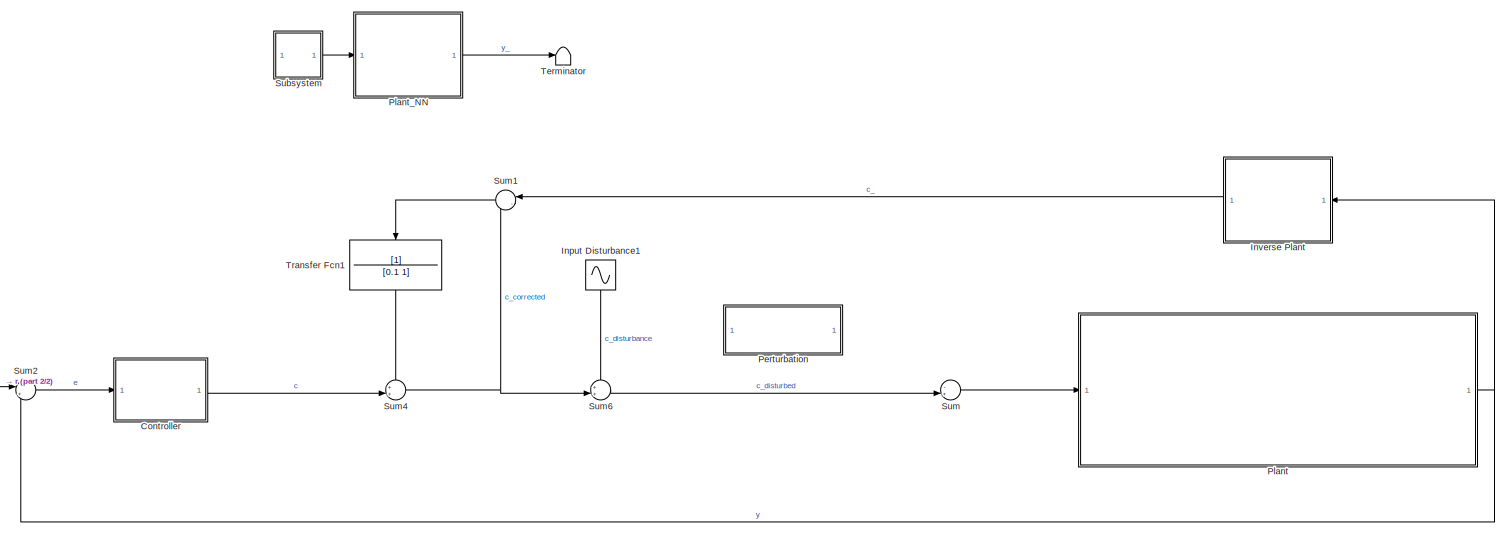
[diagram: root canvas - part 1/2, most of the canvas]
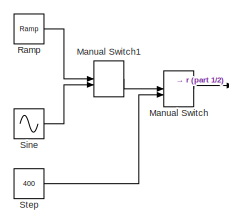
[diagram: root canvas - part 2/2, bottom left region]
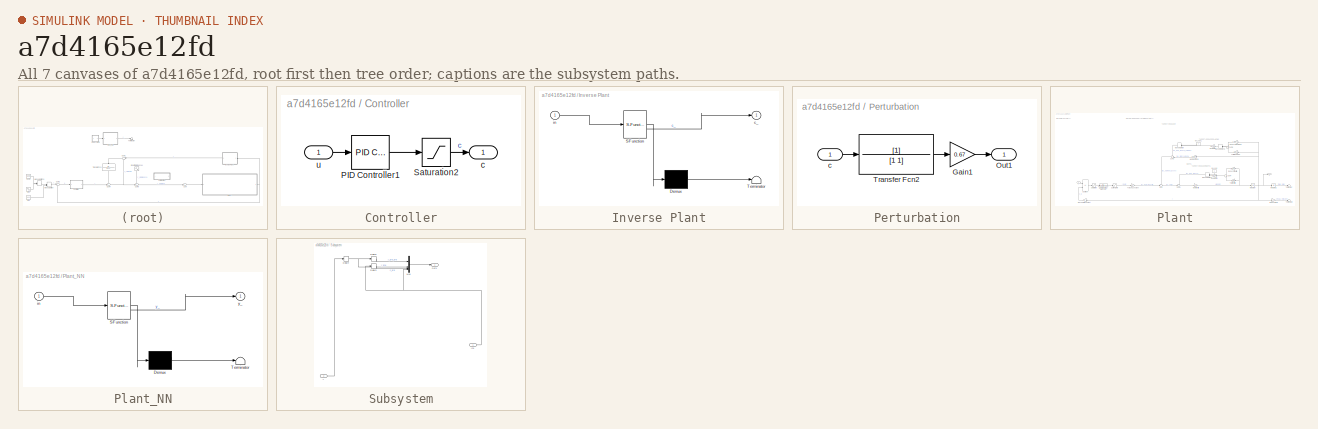
[diagram: thumbnail index - all 7 canvases of the model, root first then tree order]
MODEL slx_a7d4165e12fd
KIND model
CONFIG AbsTol = auto
CONFIG EnableMultiTasking = off
CONFIG FixedStep = auto
CONFIG MaxStep = auto
CONFIG MinStep = auto
CONFIG RelTol = 1e-3
CONFIG SampleTimeConstraint = Unconstrained
CONFIG SolverName = VariableStepAuto
CONFIG StartTime = 0.0
CONFIG StopTime = 10
BLOCK [SubSystem] Controller
  NameLocation = top
BLOCK [Reference] Controller/PID Controller1  REF=slpidlib/PID Controller
  SourceBlock = slpidlib/PID Controller
  SourceType = PID 1dof
BLOCK [Saturate] Controller/Saturation2
  LowerLimit = -28
  UpperLimit = 28
BLOCK [Outport] Controller/c
BLOCK [Inport] Controller/u
BLOCK [Sin] Input Disturbance1
  NameLocation = top
  SampleTime = 0
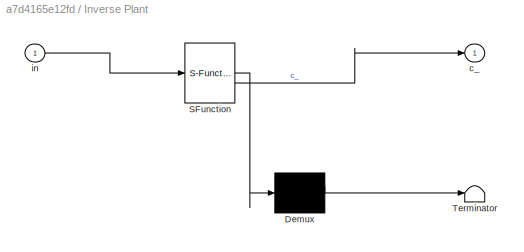
BLOCK [SubSystem] Inverse Plant
  ErrorFcn = Stateflow.Translate.translate
  LibrarySourceBlock = simulink/User-Defined\nFunctions/MATLAB Function
  PermitHierarchicalResolution = ExplicitOnly
  SFBlockType = MATLAB Function
  TreatAsAtomicUnit = on
BLOCK [Demux] Inverse Plant/ Demux 
  Outputs = 1
BLOCK [S-Function] Inverse Plant/ SFunction 
  EnableBusSupport = on
  FunctionName = sf_sfun
  PortCounts = [1 2]
  SFcnIsStateOwnerBlock = off
  SFunctionDeploymentMode = off
  Tag = Stateflow S-Function 2
BLOCK [Terminator] Inverse Plant/ Terminator 
BLOCK [Outport] Inverse Plant/c_
BLOCK [Inport] Inverse Plant/in
BLOCK [ManualSwitch] Manual Switch
BLOCK [ManualSwitch] Manual Switch1
BLOCK [SubSystem] Perturbation
  Commented = on
BLOCK [Gain] Perturbation/Gain1
  Gain = 0.67
BLOCK [Outport] Perturbation/Out1
BLOCK [TransferFcn] Perturbation/Transfer Fcn2
  Denominator = [1 1]
BLOCK [Inport] Perturbation/c
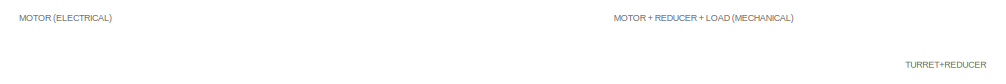
[diagram: Plant - part 1/3, top left region]
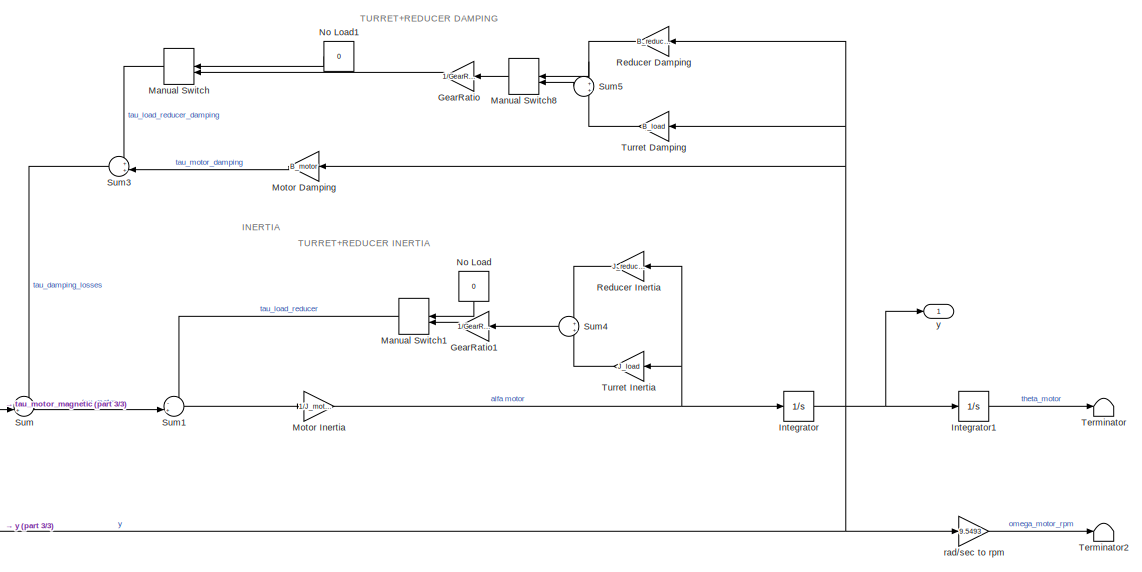
[diagram: Plant - part 2/3, right side, full height]
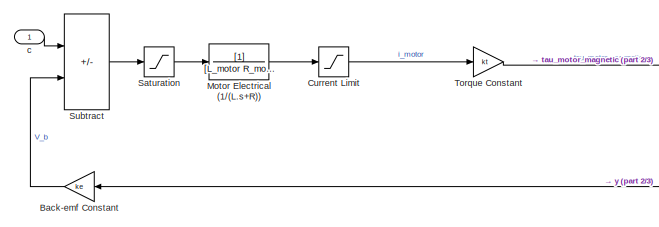
[diagram: Plant - part 3/3, bottom left region]
BLOCK [SubSystem] Plant
  NameLocation = top
BLOCK [Gain] Plant/Back-emf Constant
  Gain = ke
  NameLocation = top
BLOCK [Saturate] Plant/Current Limit
  LowerLimit = -80
  UpperLimit = 80
BLOCK [Gain] Plant/GearRatio
  Gain = 1/GearRatio^2
BLOCK [Gain] Plant/GearRatio1
  Gain = 1/GearRatio^2
BLOCK [Integrator] Plant/Integrator
BLOCK [Integrator] Plant/Integrator1
BLOCK [ManualSwitch] Plant/Manual Switch
  CurrentSetting = 0
  NameLocation = top
BLOCK [ManualSwitch] Plant/Manual Switch1
  CurrentSetting = 0
  NameLocation = top
BLOCK [ManualSwitch] Plant/Manual Switch8
  CurrentSetting = 0
  NameLocation = top
BLOCK [Gain] Plant/Motor Damping
  Gain = B_motor
BLOCK [TransferFcn] Plant/Motor Electrical (1//(L.s+R))
  Denominator = [L_motor R_motor]
BLOCK [Gain] Plant/Motor Inertia
  Gain = 1/J_motor
BLOCK [Constant] Plant/No Load
  NameLocation = right
  Value = 0
BLOCK [Constant] Plant/No Load1
  NameLocation = right
  Value = 0
BLOCK [Gain] Plant/Reducer Damping
  Gain = B_reducer
BLOCK [Gain] Plant/Reducer Inertia
  Gain = J_reducer
BLOCK [Saturate] Plant/Saturation
  LowerLimit = -28
  UpperLimit = 28
BLOCK [Sum] Plant/Subtract
  IconShape = rectangular
  Inputs = +-
BLOCK [Sum] Plant/Sum
  Inputs = -+|
BLOCK [Sum] Plant/Sum1
  Inputs = -+|
BLOCK [Sum] Plant/Sum3
  Inputs = ++|
  NameLocation = top
BLOCK [Sum] Plant/Sum4
  NameLocation = top
BLOCK [Sum] Plant/Sum5
  NameLocation = top
BLOCK [Terminator] Plant/Terminator
BLOCK [Terminator] Plant/Terminator2
BLOCK [Gain] Plant/Torque Constant
  Gain = kt
BLOCK [Gain] Plant/Turret Damping
  Gain = B_load
BLOCK [Gain] Plant/Turret Inertia
  Gain = J_load
BLOCK [Inport] Plant/c
BLOCK [Gain] Plant/rad//sec to rpm
  Gain = 9.5493
BLOCK [Outport] Plant/y
BLOCK [SubSystem] Plant_NN
  ErrorFcn = Stateflow.Translate.translate
  LibrarySourceBlock = simulink/User-Defined\nFunctions/MATLAB Function
  PermitHierarchicalResolution = ExplicitOnly
  SFBlockType = MATLAB Function
  TreatAsAtomicUnit = on
BLOCK [Demux] Plant_NN/ Demux 
  Outputs = 1
BLOCK [S-Function] Plant_NN/ SFunction 
  EnableBusSupport = on
  FunctionName = sf_sfun
  PortCounts = [1 2]
  SFcnIsStateOwnerBlock = off
  SFunctionDeploymentMode = off
  Tag = Stateflow S-Function 1
BLOCK [Terminator] Plant_NN/ Terminator 
BLOCK [Inport] Plant_NN/in
BLOCK [Outport] Plant_NN/y_
BLOCK [Reference] Ramp  REF=simulink/Sources/Ramp
  NameLocation = top
  SourceBlock = simulink/Sources/Ramp
  SourceType = Ramp
BLOCK [Sin] Sine
  Amplitude = 400
  NameLocation = top
  SampleTime = 0
BLOCK [Constant] Step
  NameLocation = top
  Value = 400
BLOCK [SubSystem] Subsystem
BLOCK [Delay] Subsystem/Delay3
  DelayLength = 1
  InputPortMap = u0
  SampleTime = 0.01
BLOCK [Delay] Subsystem/Delay4
  DelayLength = 1
  InputPortMap = u0
  SampleTime = 0.01
BLOCK [Delay] Subsystem/Delay5
  DelayLength = 1
  InputPortMap = u0
  SampleTime = 0.01
BLOCK [Inport] Subsystem/In1
BLOCK [Mux] Subsystem/Mux
  DisplayOption = bar
BLOCK [Outport] Subsystem/Out1
BLOCK [Inport] Subsystem/y
  Port = 2
BLOCK [Sum] Sum
  Inputs = -+|
BLOCK [Sum] Sum1
  Inputs = |-+
  NameLocation = top
BLOCK [Sum] Sum2
  Inputs = |+-
BLOCK [Sum] Sum4
  Inputs = ++|
BLOCK [Sum] Sum6
  Inputs = ++|
BLOCK [Terminator] Terminator
BLOCK [TransferFcn] Transfer Fcn1
  Denominator = [0.1 1]
  NameLocation = left
ANNOTATION Plant: INERTIA
ANNOTATION Plant: MOTOR (ELECTRICAL)
ANNOTATION Plant: MOTOR + REDUCER + LOAD (MECHANICAL)
ANNOTATION Plant: TURRET+REDUCER
ANNOTATION Plant: TURRET+REDUCER DAMPING
ANNOTATION Plant: TURRET+REDUCER INERTIA
LINE Controller/PID Controller1:1 -> Controller/Saturation2:1
LINE Controller/Saturation2:1 -> Controller/c:1
LINE Controller/u:1 -> Controller/PID Controller1:1
LINE Controller:1 -> Sum4:2
LINE Input Disturbance1:1 -> Sum6:1
LINE Inverse Plant:1 -> Sum1:1
LINE Manual Switch1:1 -> Manual Switch:1
LINE Manual Switch:1 -> Sum2:1
LINE Perturbation/Gain1:1 -> Perturbation/Out1:1
LINE Perturbation/Transfer Fcn2:1 -> Perturbation/Gain1:1
LINE Perturbation/c:1 -> Perturbation/Transfer Fcn2:1
LINE Plant/Back-emf Constant:1 -> Plant/Subtract:2
LINE Plant/Current Limit:1 -> Plant/Torque Constant:1
LINE Plant/GearRatio1:1 -> Plant/Manual Switch1:2
LINE Plant/GearRatio:1 -> Plant/Manual Switch:2
LINE Plant/Integrator1:1 -> Plant/Terminator:1
NET Plant/Integrator:1 -> Plant/Back-emf Constant:1, Plant/Integrator1:1, Plant/Motor Damping:1, Plant/Reducer Damping:1, Plant/Turret Damping:1, Plant/rad//sec to rpm:1, Plant/y:1
LINE Plant/Manual Switch1:1 -> Plant/Sum1:1
LINE Plant/Manual Switch8:1 -> Plant/GearRatio:1
LINE Plant/Manual Switch:1 -> Plant/Sum3:1
LINE Plant/Motor Damping:1 -> Plant/Sum3:2
LINE Plant/Motor Electrical (1//(L.s+R)):1 -> Plant/Current Limit:1
NET Plant/Motor Inertia:1 -> Plant/Integrator:1, Plant/Reducer Inertia:1, Plant/Turret Inertia:1
LINE Plant/No Load1:1 -> Plant/Manual Switch:1
LINE Plant/No Load:1 -> Plant/Manual Switch1:1
NET Plant/Reducer Damping:1 -> Plant/Manual Switch8:1, Plant/Sum5:1
LINE Plant/Reducer Inertia:1 -> Plant/Sum4:1
LINE Plant/Saturation:1 -> Plant/Motor Electrical (1//(L.s+R)):1
LINE Plant/Subtract:1 -> Plant/Saturation:1
LINE Plant/Sum1:1 -> Plant/Motor Inertia:1
LINE Plant/Sum3:1 -> Plant/Sum:1
LINE Plant/Sum4:1 -> Plant/GearRatio1:1
LINE Plant/Sum5:1 -> Plant/Manual Switch8:2
LINE Plant/Sum:1 -> Plant/Sum1:2
LINE Plant/Torque Constant:1 -> Plant/Sum:2
LINE Plant/Turret Damping:1 -> Plant/Sum5:2
LINE Plant/Turret Inertia:1 -> Plant/Sum4:2
LINE Plant/c:1 -> Plant/Subtract:1
LINE Plant/rad//sec to rpm:1 -> Plant/Terminator2:1
NET Plant:1 -> Inverse Plant:1, Sum2:2
LINE Plant_NN:1 -> Terminator:1
LINE Ramp:1 -> Manual Switch1:1
LINE Sine:1 -> Manual Switch1:2
LINE Step:1 -> Manual Switch:2
LINE Subsystem/Delay3:1 -> Subsystem/Mux:3
NET Subsystem/Delay4:1 -> Subsystem/Delay5:1, Subsystem/Mux:2
LINE Subsystem/Delay5:1 -> Subsystem/Mux:1
NET Subsystem/In1:1 -> Subsystem/Delay3:1, Subsystem/Mux:4
LINE Subsystem/Mux:1 -> Subsystem/Out1:1
LINE Subsystem/y:1 -> Subsystem/Delay4:1
LINE Subsystem:1 -> Plant_NN:1
LINE Sum1:1 -> Transfer Fcn1:1
LINE Sum2:1 -> Controller:1
NET Sum4:1 -> Sum1:2, Sum6:2
LINE Sum6:1 -> Sum:2
LINE Sum:1 -> Plant:1
LINE Transfer Fcn1:1 -> Sum4:1
note: NET lines group one-source signal fan-out (src -> all destinations, sorted); 1:1 wires keep LINE
CHART Inverse Plant states=1 transitions=1
  STATE_LABEL 'eML_blk_kernel()'
  STATE_LABEL 'SCRIPT:\nfunction c_ = inverse_plant(in)\n    y_ =  0.0534; r_ = 16.0258;\n    c__ = 1.2811; r__ = 384.4721;\n    input_training = (in - c__)/r__;\n    Phi = [ -0.7229   -0.1132         0         0\n            -0.7229   -0.1132         0         0\n            -0.7229   -0.1132         0         0\n            -0.4882   -0.4882   -0.4882   -0.1223];\n    BIAS = -.1;\n    % FORWARD PASS:\n    NUM_INP = 1; NU...<+195ch>'
CHART Plant_NN states=1 transitions=1
  STATE_LABEL 'eML_blk_kernel()'
  STATE_LABEL 'SCRIPT:\nfunction y_ = forward_pass(in)\n    c_sf_i_4 = 24.3519;     r_sf_i_4 = 3.6481;\n    c_sf_i_3 = 14;          r_sf_i_3 = 14;\n    c_sf_i_2 = 249.4384;    r_sf_i_2 = 249.4384;\n    c_sf_i_1 = 249.4394;    r_sf_i_1 = 249.4394;\n    c_sf_o_1 = 249.3494;    r_sf_o_1 = 249.4394;\n    input_training = (([in(4) in(3) in(2) in(1)] - [c_sf_i_4 c_sf_i_3 c_sf_i_2 c_sf_i_1]) ./ [r_sf_i_4 r_sf_i_3 r_sf_i_2 r_s...<+1512ch>'
CHART  states=0 transitions=0
CHART  states=0 transitions=0
